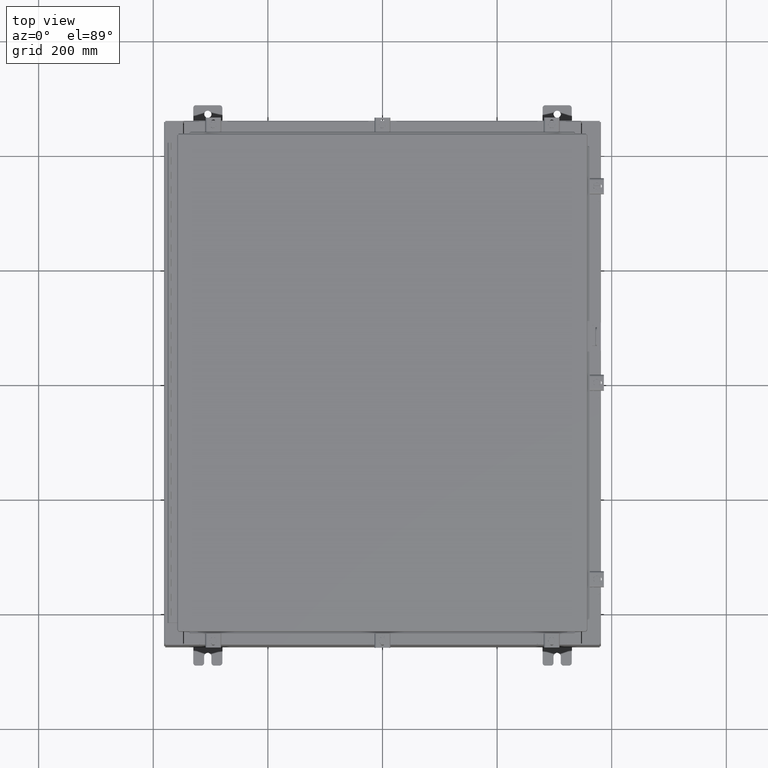
[diagram: clean part render]
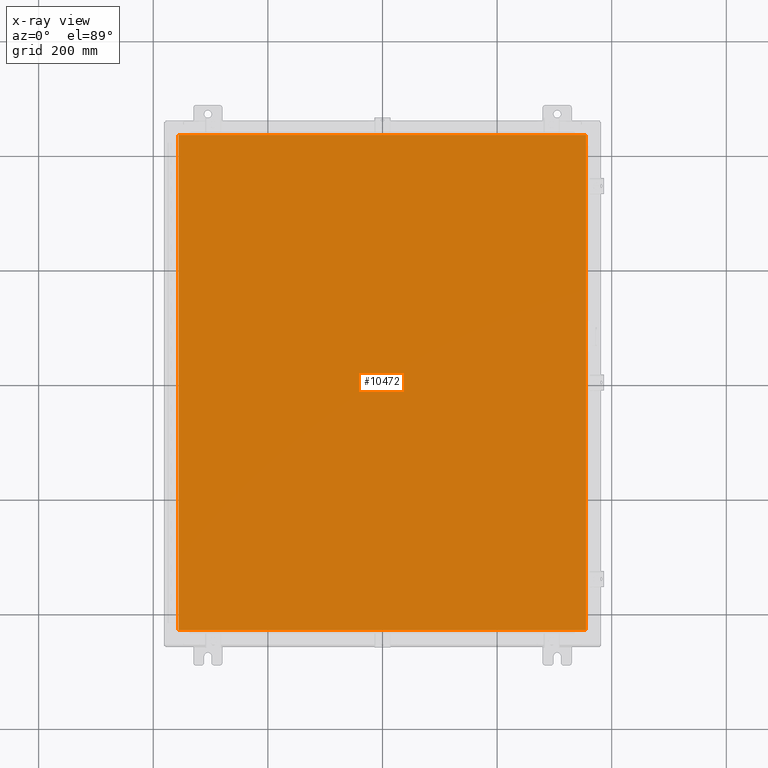
[diagram: x-ray — body ghosted, one internal face saturated and labeled with its STEP entity id]
A machine part, top view, then the same camera in x-ray: the body is ghosted and one INTERNAL B-rep face — a face not visible from any outside direction — is saturated and labeled: STEP entity #10472.
In plain terms, the highlighted planar face has unit normal (0, 0, -1).
Its self-contained STEP definition (entity closure, byte-faithful):
#305 = FACE_OUTER_BOUND ( 'NONE', #42642, .T. ) ;
#735 = CARTESIAN_POINT ( 'NONE',  ( 13.99029999999999200, 17.00630000000000300, -0.07470000000000129300 ) ) ;
#1714 = LINE ( 'NONE', #41491, #27336 ) ;
#4091 = CARTESIAN_POINT ( 'NONE',  ( -13.99030000000000700, -17.00630000000000000, -0.07470000000000000300 ) ) ;
#4271 = VECTOR ( 'NONE', #23164, 39.37007874015748100 ) ;
#4423 = EDGE_CURVE ( 'NONE', #36599, #6451, #10528, .T. ) ;
#5960 = CARTESIAN_POINT ( 'NONE',  ( 13.99029999999999200, -17.00630000000000000, -0.07470000000000019700 ) ) ;
#6307 = PLANE ( 'NONE',  #29627 ) ;
#6451 = VERTEX_POINT ( 'NONE', #26505 ) ;
#6699 = EDGE_CURVE ( 'NONE', #10688, #36599, #13170, .T. ) ;
#9646 = DIRECTION ( 'NONE',  ( -1.000000000000000000, 0.0000000000000000000, -0.0000000000000000000 ) ) ;
#10082 = VERTEX_POINT ( 'NONE', #20957 ) ;
#10444 = ORIENTED_EDGE ( 'NONE', *, *, #4423, .F. ) ;
#10472 = ADVANCED_FACE ( 'NONE', ( #305 ), #6307, .T. ) ;
#10528 = LINE ( 'NONE', #5960, #18357 ) ;
#10688 = VERTEX_POINT ( 'NONE', #4091 ) ;
#13170 = LINE ( 'NONE', #42780, #4271 ) ;
#14032 = DIRECTION ( 'NONE',  ( -1.000000000000000000, -0.0000000000000000000, -0.0000000000000000000 ) ) ;
#15444 = VECTOR ( 'NONE', #14032, 39.37007874015748100 ) ;
#18357 = VECTOR ( 'NONE', #36063, 39.37007874015748100 ) ;
#20957 = CARTESIAN_POINT ( 'NONE',  ( -13.99030000000000700, 17.00630000000000300, -0.07470000000000000300 ) ) ;
#23164 = DIRECTION ( 'NONE',  ( 1.000000000000000000, -0.0000000000000000000, -0.0000000000000000000 ) ) ;
#24876 = DIRECTION ( 'NONE',  ( 0.0000000000000000000, -1.000000000000000000, 0.0000000000000000000 ) ) ;
#25834 = ORIENTED_EDGE ( 'NONE', *, *, #33032, .F. ) ;
#26186 = CARTESIAN_POINT ( 'NONE',  ( 0.0000000000000000000, 0.0000000000000000000, -0.07470000000000000300 ) ) ;
#26505 = CARTESIAN_POINT ( 'NONE',  ( 13.99029999999999200, 17.00630000000000300, -0.07470000000000000300 ) ) ;
#27336 = VECTOR ( 'NONE', #24876, 39.37007874015748100 ) ;
#27969 = EDGE_CURVE ( 'NONE', #10082, #10688, #1714, .T. ) ;
#29627 = AXIS2_PLACEMENT_3D ( 'NONE', #26186, #29693, #9646 ) ;
#29693 = DIRECTION ( 'NONE',  ( 0.0000000000000000000, 0.0000000000000000000, -1.000000000000000000 ) ) ;
#29759 = ORIENTED_EDGE ( 'NONE', *, *, #27969, .F. ) ;
#33032 = EDGE_CURVE ( 'NONE', #6451, #10082, #35289, .T. ) ;
#35289 = LINE ( 'NONE', #735, #15444 ) ;
#36063 = DIRECTION ( 'NONE',  ( 0.0000000000000000000, 1.000000000000000000, 0.0000000000000000000 ) ) ;
#36599 = VERTEX_POINT ( 'NONE', #42474 ) ;
#41491 = CARTESIAN_POINT ( 'NONE',  ( -13.99030000000000700, 17.00630000000000000, -0.07470000000000019700 ) ) ;
#41736 = ORIENTED_EDGE ( 'NONE', *, *, #6699, .F. ) ;
#42474 = CARTESIAN_POINT ( 'NONE',  ( 13.99029999999999200, -17.00630000000000000, -0.07470000000000000300 ) ) ;
#42642 = EDGE_LOOP ( 'NONE', ( #10444, #41736, #29759, #25834 ) ) ;
#42780 = CARTESIAN_POINT ( 'NONE',  ( -13.99030000000000700, -17.00630000000000000, -0.07470000000000019700 ) ) ;